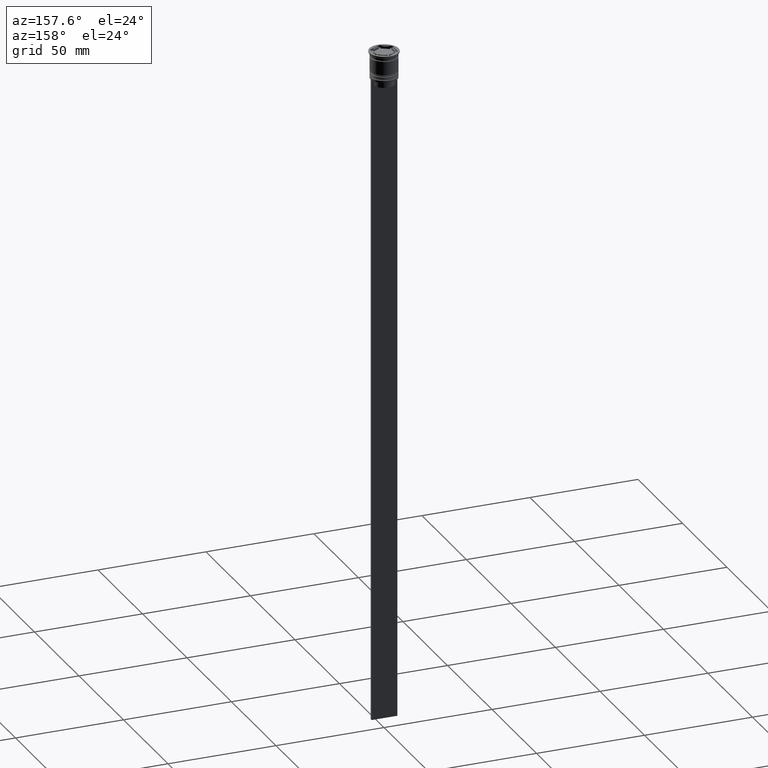
[diagram: clean part render]
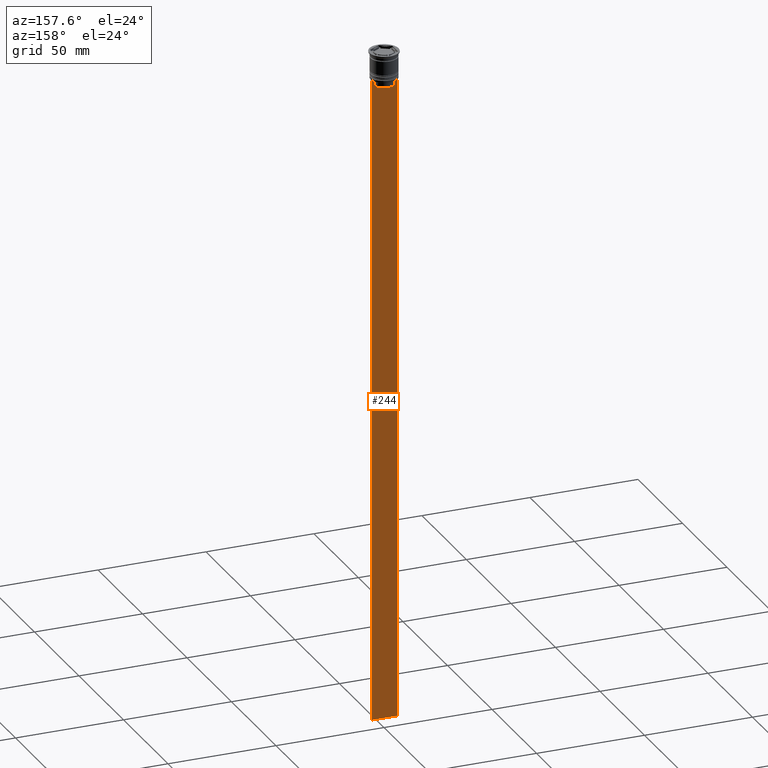
[diagram: same view with one face highlighted and labeled with its STEP entity id]
A machine part, auxiliary view. The second image highlights one B-rep face of the part: STEP entity #244.
In plain terms, the highlighted planar face has unit normal (0, -1, -0).
Its self-contained STEP definition (entity closure, byte-faithful):
#13 = LINE ( 'NONE', #2306, #1446 ) ;
#49 = EDGE_CURVE ( 'NONE', #2009, #1044, #1540, .T. ) ;
#59 = CARTESIAN_POINT ( 'NONE',  ( 6.000000000000016875, 0.4999999999999982792, -312.5000000000000000 ) ) ;
#63 = CARTESIAN_POINT ( 'NONE',  ( 6.000000000000016875, 0.4999999999999982792, -0.4584054212077061097 ) ) ;
#71 = VECTOR ( 'NONE', #1574, 1000.000000000000000 ) ;
#104 = ORIENTED_EDGE ( 'NONE', *, *, #2343, .T. ) ;
#124 = EDGE_CURVE ( 'NONE', #178, #900, #2297, .T. ) ;
#136 = PLANE ( 'NONE',  #145 ) ;
#145 = AXIS2_PLACEMENT_3D ( 'NONE', #687, #1253, #1791 ) ;
#163 = CARTESIAN_POINT ( 'NONE',  ( -5.999999999999983125, 0.4999999999999982792, -312.5000000000000000 ) ) ;
#175 = CARTESIAN_POINT ( 'NONE',  ( -5.125670687822231564, 0.4999999999999982792, -12.50000000000000000 ) ) ;
#178 = VERTEX_POINT ( 'NONE', #2336 ) ;
#184 = EDGE_CURVE ( 'NONE', #630, #178, #1895, .T. ) ;
#193 = EDGE_LOOP ( 'NONE', ( #104, #2097, #1369, #2055, #743, #961, #886, #383, #1886, #1538 ) ) ;
#244 = ADVANCED_FACE ( 'NONE', ( #1065 ), #136, .F. ) ;
#266 = CARTESIAN_POINT ( 'NONE',  ( 4.623040125285526436, 0.4999999999999982792, -13.00000000000000178 ) ) ;
#291 = VECTOR ( 'NONE', #856, 1000.000000000000000 ) ;
#331 = CARTESIAN_POINT ( 'NONE',  ( -5.999999999999983125, 0.4999999999999985012, -12.50000000000000000 ) ) ;
#336 = LINE ( 'NONE', #579, #1368 ) ;
#368 = CARTESIAN_POINT ( 'NONE',  ( -4.623040125285526436, 0.4999999999999982792, -13.00000000000000178 ) ) ;
#383 = ORIENTED_EDGE ( 'NONE', *, *, #1257, .T. ) ;
#507 = CARTESIAN_POINT ( 'NONE',  ( -4.623040125285526436, 0.4999999999999982792, -13.00000000000000178 ) ) ;
#579 = CARTESIAN_POINT ( 'NONE',  ( 6.000000000000016875, 0.4999999999999982792, -12.50000000000000000 ) ) ;
#603 = VECTOR ( 'NONE', #1123, 1000.000000000000000 ) ;
#630 = VERTEX_POINT ( 'NONE', #266 ) ;
#649 = VERTEX_POINT ( 'NONE', #1153 ) ;
#687 = CARTESIAN_POINT ( 'NONE',  ( 6.000000000000016875, 0.4999999999999982792, -0.4584054212077061097 ) ) ;
#717 = VECTOR ( 'NONE', #821, 1000.000000000000000 ) ;
#724 = LINE ( 'NONE', #1077, #71 ) ;
#743 = ORIENTED_EDGE ( 'NONE', *, *, #2311, .T. ) ;
#821 = DIRECTION ( 'NONE',  ( -1.000000000000000000, 0.000000000000000000, 0.000000000000000000 ) ) ;
#851 = EDGE_CURVE ( 'NONE', #1302, #983, #2277, .T. ) ;
#856 = DIRECTION ( 'NONE',  ( 1.000000000000000000, 0.000000000000000000, 0.000000000000000000 ) ) ;
#886 = ORIENTED_EDGE ( 'NONE', *, *, #124, .T. ) ;
#900 = VERTEX_POINT ( 'NONE', #1939 ) ;
#906 = DIRECTION ( 'NONE',  ( 1.000000000000000000, 0.000000000000000000, 0.000000000000000000 ) ) ;
#912 = VECTOR ( 'NONE', #1221, 1000.000000000000000 ) ;
#961 = ORIENTED_EDGE ( 'NONE', *, *, #184, .T. ) ;
#983 = VERTEX_POINT ( 'NONE', #163 ) ;
#1018 = VERTEX_POINT ( 'NONE', #331 ) ;
#1044 = VERTEX_POINT ( 'NONE', #368 ) ;
#1048 = CARTESIAN_POINT ( 'NONE',  ( 4.790630799407576745, 0.4999999999999982792, -12.83338098686239093 ) ) ;
#1065 = FACE_OUTER_BOUND ( 'NONE', #193, .T. ) ;
#1077 = CARTESIAN_POINT ( 'NONE',  ( -5.999999999999983125, 0.4999999999999982792, -0.4584054212077061097 ) ) ;
#1105 = DIRECTION ( 'NONE',  ( -0.000000000000000000, -0.000000000000000000, 1.000000000000000000 ) ) ;
#1114 = EDGE_CURVE ( 'NONE', #1044, #1129, #2206, .T. ) ;
#1123 = DIRECTION ( 'NONE',  ( 0.000000000000000000, 0.000000000000000000, -1.000000000000000000 ) ) ;
#1129 = VERTEX_POINT ( 'NONE', #2026 ) ;
#1153 = CARTESIAN_POINT ( 'NONE',  ( 4.623040125285526436, 0.4999999999999987232, -15.50000000000000000 ) ) ;
#1161 = CARTESIAN_POINT ( 'NONE',  ( -5.125670687822231564, 0.4999999999999982792, -12.50000000000000000 ) ) ;
#1221 = DIRECTION ( 'NONE',  ( 1.000000000000000000, 0.000000000000000000, 0.000000000000000000 ) ) ;
#1235 = CARTESIAN_POINT ( 'NONE',  ( 6.000000000000016875, 0.4999999999999982792, -12.50000000000000000 ) ) ;
#1253 = DIRECTION ( 'NONE',  ( 0.000000000000000000, -1.000000000000000000, -0.000000000000000000 ) ) ;
#1257 = EDGE_CURVE ( 'NONE', #900, #1302, #2024, .T. ) ;
#1302 = VERTEX_POINT ( 'NONE', #2180 ) ;
#1303 = DIRECTION ( 'NONE',  ( 0.000000000000000000, 0.000000000000000000, -1.000000000000000000 ) ) ;
#1368 = VECTOR ( 'NONE', #906, 1000.000000000000000 ) ;
#1369 = ORIENTED_EDGE ( 'NONE', *, *, #1114, .T. ) ;
#1435 = VECTOR ( 'NONE', #1303, 1000.000000000000000 ) ;
#1446 = VECTOR ( 'NONE', #1105, 1000.000000000000000 ) ;
#1454 = CARTESIAN_POINT ( 'NONE',  ( -4.623040125285526436, 0.4999999999999982792, 0.000000000000000000 ) ) ;
#1461 = LINE ( 'NONE', #1993, #912 ) ;
#1529 = CARTESIAN_POINT ( 'NONE',  ( -4.958169823806762189, 0.4999999999999982792, -12.66670956677067750 ) ) ;
#1538 = ORIENTED_EDGE ( 'NONE', *, *, #1951, .F. ) ;
#1540 = B_SPLINE_CURVE_WITH_KNOTS ( 'NONE', 3,
 ( #1161, #1529, #2248, #507 ),
 .UNSPECIFIED., .F., .F.,
 ( 4, 4 ),
 ( 0.008759809102772707357, 0.009468778395565351919 ),
 .UNSPECIFIED. ) ;
#1574 = DIRECTION ( 'NONE',  ( 0.000000000000000000, 0.000000000000000000, -1.000000000000000000 ) ) ;
#1611 = CARTESIAN_POINT ( 'NONE',  ( 5.125670687822231564, 0.4999999999999982792, -12.50000000000000000 ) ) ;
#1791 = DIRECTION ( 'NONE',  ( 0.000000000000000000, 0.000000000000000000, -1.000000000000000000 ) ) ;
#1886 = ORIENTED_EDGE ( 'NONE', *, *, #851, .T. ) ;
#1895 = B_SPLINE_CURVE_WITH_KNOTS ( 'NONE', 3,
 ( #1964, #1048, #1952, #1611 ),
 .UNSPECIFIED., .F., .F.,
 ( 4, 4 ),
 ( 0.02203698174624552433, 0.02275222543365896036 ),
 .UNSPECIFIED. ) ;
#1939 = CARTESIAN_POINT ( 'NONE',  ( 6.000000000000016875, 0.4999999999999982792, -12.50000000000000000 ) ) ;
#1951 = EDGE_CURVE ( 'NONE', #1018, #983, #724, .T. ) ;
#1952 = CARTESIAN_POINT ( 'NONE',  ( 4.958169719475987058, 0.4999999999999982792, -12.66670967060858111 ) ) ;
#1964 = CARTESIAN_POINT ( 'NONE',  ( 4.623040125285526436, 0.4999999999999982792, -13.00000000000000178 ) ) ;
#1993 = CARTESIAN_POINT ( 'NONE',  ( 0.000000000000000000, 0.4999999999999987232, -15.50000000000000000 ) ) ;
#2009 = VERTEX_POINT ( 'NONE', #175 ) ;
#2024 = LINE ( 'NONE', #63, #603 ) ;
#2026 = CARTESIAN_POINT ( 'NONE',  ( -4.623040125285526436, 0.4999999999999987232, -15.50000000000000000 ) ) ;
#2055 = ORIENTED_EDGE ( 'NONE', *, *, #2234, .T. ) ;
#2097 = ORIENTED_EDGE ( 'NONE', *, *, #49, .T. ) ;
#2180 = CARTESIAN_POINT ( 'NONE',  ( 6.000000000000016875, 0.4999999999999982792, -312.5000000000000000 ) ) ;
#2206 = LINE ( 'NONE', #1454, #1435 ) ;
#2234 = EDGE_CURVE ( 'NONE', #1129, #649, #1461, .T. ) ;
#2248 = CARTESIAN_POINT ( 'NONE',  ( -4.790630915080666519, 0.4999999999999982792, -12.83338087185995313 ) ) ;
#2277 = LINE ( 'NONE', #59, #717 ) ;
#2297 = LINE ( 'NONE', #1235, #291 ) ;
#2306 = CARTESIAN_POINT ( 'NONE',  ( 4.623040125285526436, 0.4999999999999982792, 0.000000000000000000 ) ) ;
#2311 = EDGE_CURVE ( 'NONE', #649, #630, #13, .T. ) ;
#2336 = CARTESIAN_POINT ( 'NONE',  ( 5.125670687822231564, 0.4999999999999982792, -12.50000000000000000 ) ) ;
#2343 = EDGE_CURVE ( 'NONE', #1018, #2009, #336, .T. ) ;